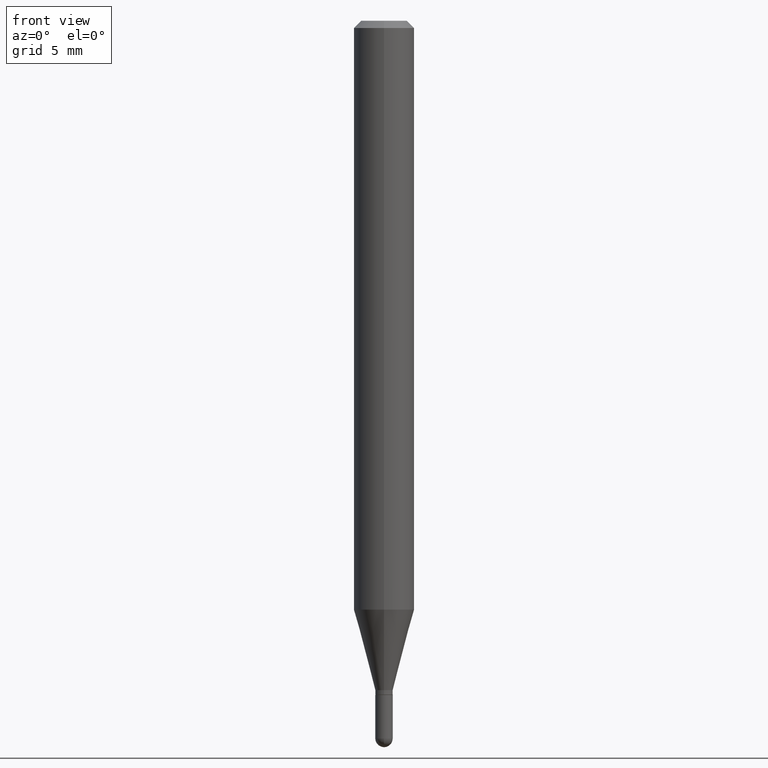
[diagram: clean part render]
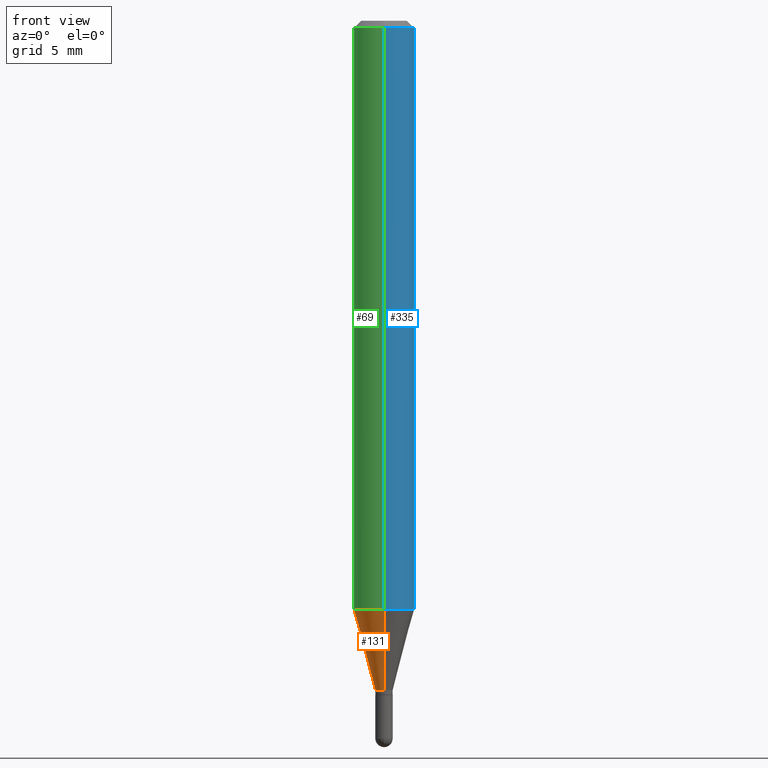
[diagram: same view with three faces highlighted in distinct colors, each labeled with its STEP entity id]
A machine part, front view with three faces highlighted in distinct colors.
Their STEP definitions:

[orange] entity #131 — the highlighted conical surface has half-angle 15 deg.
#9 = DIRECTION ( 'NONE',  ( -2.445452881351750103E-29, 3.491504144110940427E-15, 1.000000000000000000 ) ) ;
#22 = AXIS2_PLACEMENT_3D ( 'NONE', #480, #126, #511 ) ;
#67 = CARTESIAN_POINT ( 'NONE',  ( 1.278976924368512546E-16, 0.01799999999999509631, -1.382000000000000117 ) ) ;
#73 = LINE ( 'NONE', #67, #485 ) ;
#95 = EDGE_CURVE ( 'NONE', #166, #256, #73, .T. ) ;
#100 = LINE ( 'NONE', #257, #434 ) ;
#123 = CARTESIAN_POINT ( 'NONE',  ( 4.440892098500920998E-16, 0.06249999999999573952, -1.215923739063185627 ) ) ;
#126 = DIRECTION ( 'NONE',  ( -2.445452881351750103E-29, 3.491504144110940427E-15, 1.000000000000000000 ) ) ;
#131 = ADVANCED_FACE ( 'NONE', ( #270 ), #374, .T. ) ;
#139 = ORIENTED_EDGE ( 'NONE', *, *, #207, .T. ) ;
#166 = VERTEX_POINT ( 'NONE', #192 ) ;
#169 = CARTESIAN_POINT ( 'NONE',  ( -1.256933281983184281E-16, -0.01800000000000474831, -1.382000000000000117 ) ) ;
#186 = AXIS2_PLACEMENT_3D ( 'NONE', #259, #9, #402 ) ;
#192 = CARTESIAN_POINT ( 'NONE',  ( 2.859934511434718867E-16, 0.01799999999999509631, -1.382000000000000117 ) ) ;
#203 = EDGE_LOOP ( 'NONE', ( #222, #139, #357, #266 ) ) ;
#207 = EDGE_CURVE ( 'NONE', #166, #317, #399, .T. ) ;
#222 = ORIENTED_EDGE ( 'NONE', *, *, #95, .F. ) ;
#227 = DIRECTION ( 'NONE',  ( -1.807323732225330139E-15, -0.2588190451025181860, 0.9659258262890689783 ) ) ;
#241 = CARTESIAN_POINT ( 'NONE',  ( 3.379615882028119036E-29, -4.825258727161319601E-15, -1.382000000000000117 ) ) ;
#256 = VERTEX_POINT ( 'NONE', #123 ) ;
#257 = CARTESIAN_POINT ( 'NONE',  ( -1.256933281983184281E-16, -0.01800000000000474831, -1.382000000000000117 ) ) ;
#259 = CARTESIAN_POINT ( 'NONE',  ( 2.973484211196059892E-29, -4.245402773861981579E-15, -1.215923739063185405 ) ) ;
#266 = ORIENTED_EDGE ( 'NONE', *, *, #362, .F. ) ;
#270 = FACE_OUTER_BOUND ( 'NONE', #203, .T. ) ;
#276 = AXIS2_PLACEMENT_3D ( 'NONE', #241, #495, #458 ) ;
#317 = VERTEX_POINT ( 'NONE', #169 ) ;
#357 = ORIENTED_EDGE ( 'NONE', *, *, #484, .T. ) ;
#362 = EDGE_CURVE ( 'NONE', #256, #442, #497, .T. ) ;
#363 = CARTESIAN_POINT ( 'NONE',  ( -4.364351673553620378E-16, -0.06250000000000426048, -1.215923739063185183 ) ) ;
#374 = CONICAL_SURFACE ( 'NONE', #276, 0.01799999999999992231, 0.2617993877991502960 ) ;
#399 = CIRCLE ( 'NONE', #22, 0.01799999999999992231 ) ;
#402 = DIRECTION ( 'NONE',  ( -6.982962677686265922E-15, -1.000000000000000000, 4.370956789862821150E-15 ) ) ;
#434 = VECTOR ( 'NONE', #227, 39.37007874015748143 ) ;
#442 = VERTEX_POINT ( 'NONE', #363 ) ;
#458 = DIRECTION ( 'NONE',  ( -6.982962677686265133E-15, -1.000000000000000000, 0.000000000000000000 ) ) ;
#480 = CARTESIAN_POINT ( 'NONE',  ( 3.379615882028119036E-29, -4.825258727161319601E-15, -1.382000000000000117 ) ) ;
#484 = EDGE_CURVE ( 'NONE', #317, #442, #100, .T. ) ;
#485 = VECTOR ( 'NONE', #501, 39.37007874015748143 ) ;
#495 = DIRECTION ( 'NONE',  ( -2.445452881351750103E-29, 3.491504144110940427E-15, 1.000000000000000000 ) ) ;
#497 = CIRCLE ( 'NONE', #186, 0.06250000000000000000 ) ;
#501 = DIRECTION ( 'NONE',  ( 1.839019923739600315E-15, 0.2588190451025249583, 0.9659258262890670910 ) ) ;
#511 = DIRECTION ( 'NONE',  ( -6.982962677686265133E-15, -1.000000000000000000, 0.000000000000000000 ) ) ;

[blue] entity #335 — the highlighted cylindrical surface (edge-blend (fillet) strip) has radius 1.5875 mm, axis along (-0, 0, 1).
#7 = FACE_OUTER_BOUND ( 'NONE', #401, .T. ) ;
#21 = DIRECTION ( 'NONE',  ( -6.982962677686265922E-15, -1.000000000000000000, 3.483106191921935554E-15 ) ) ;
#25 = VECTOR ( 'NONE', #337, 39.37007874015748143 ) ;
#27 = EDGE_CURVE ( 'NONE', #442, #256, #80, .T. ) ;
#50 = ORIENTED_EDGE ( 'NONE', *, *, #410, .F. ) ;
#80 = CIRCLE ( 'NONE', #378, 0.06250000000000000000 ) ;
#84 = ORIENTED_EDGE ( 'NONE', *, *, #104, .F. ) ;
#103 = DIRECTION ( 'NONE',  ( -6.982962677686265922E-15, -1.000000000000000000, 4.370956789862821150E-15 ) ) ;
#104 = EDGE_CURVE ( 'NONE', #312, #488, #149, .T. ) ;
#123 = CARTESIAN_POINT ( 'NONE',  ( 4.440892098500920998E-16, 0.06249999999999573952, -1.215923739063185627 ) ) ;
#129 = DIRECTION ( 'NONE',  ( -2.445452881351750103E-29, 3.491504144110940427E-15, 1.000000000000000000 ) ) ;
#137 = CARTESIAN_POINT ( 'NONE',  ( 0.000000000000000000, 0.000000000000000000, 0.000000000000000000 ) ) ;
#149 = CIRCLE ( 'NONE', #171, 0.06250000000000000000 ) ;
#158 = DIRECTION ( 'NONE',  ( -2.445452881351750103E-29, 3.491504144110940427E-15, 1.000000000000000000 ) ) ;
#171 = AXIS2_PLACEMENT_3D ( 'NONE', #302, #386, #21 ) ;
#175 = CARTESIAN_POINT ( 'NONE',  ( -4.364351673553916201E-16, -0.06250000000000000000, 2.182190090069337767E-16 ) ) ;
#181 = CARTESIAN_POINT ( 'NONE',  ( 4.440892098500924943E-16, 0.06249999999999993755, -0.01499999999999997863 ) ) ;
#185 = CARTESIAN_POINT ( 'NONE',  ( 4.440892098500625669E-16, 0.06250000000000000000, -2.182190090069337767E-16 ) ) ;
#223 = CYLINDRICAL_SURFACE ( 'NONE', #292, 0.06250000000000000000 ) ;
#244 = CARTESIAN_POINT ( 'NONE',  ( 2.973484211196059892E-29, -4.245402773861981579E-15, -1.215923739063185405 ) ) ;
#256 = VERTEX_POINT ( 'NONE', #123 ) ;
#292 = AXIS2_PLACEMENT_3D ( 'NONE', #137, #364, #453 ) ;
#302 = CARTESIAN_POINT ( 'NONE',  ( 3.668179322027566335E-31, -5.237256216166327268E-17, -0.01499999999999976179 ) ) ;
#312 = VERTEX_POINT ( 'NONE', #355 ) ;
#325 = ORIENTED_EDGE ( 'NONE', *, *, #502, .T. ) ;
#334 = ORIENTED_EDGE ( 'NONE', *, *, #27, .T. ) ;
#335 = ADVANCED_FACE ( 'NONE', ( #7 ), #223, .T. ) ;
#337 = DIRECTION ( 'NONE',  ( -2.445452881351750103E-29, 3.491504144110940427E-15, 1.000000000000000000 ) ) ;
#355 = CARTESIAN_POINT ( 'NONE',  ( -4.364351673553912750E-16, -0.06250000000000005551, -0.01499999999999954321 ) ) ;
#363 = CARTESIAN_POINT ( 'NONE',  ( -4.364351673553620378E-16, -0.06250000000000426048, -1.215923739063185183 ) ) ;
#364 = DIRECTION ( 'NONE',  ( -2.445452881351750103E-29, 3.491504144110940427E-15, 1.000000000000000000 ) ) ;
#373 = LINE ( 'NONE', #185, #417 ) ;
#378 = AXIS2_PLACEMENT_3D ( 'NONE', #244, #158, #103 ) ;
#386 = DIRECTION ( 'NONE',  ( -2.445452881351750103E-29, 3.491504144110940427E-15, 1.000000000000000000 ) ) ;
#401 = EDGE_LOOP ( 'NONE', ( #334, #325, #84, #50 ) ) ;
#409 = LINE ( 'NONE', #175, #25 ) ;
#410 = EDGE_CURVE ( 'NONE', #442, #312, #409, .T. ) ;
#417 = VECTOR ( 'NONE', #129, 39.37007874015748143 ) ;
#442 = VERTEX_POINT ( 'NONE', #363 ) ;
#453 = DIRECTION ( 'NONE',  ( -6.982962677686265922E-15, -1.000000000000000000, 3.491504144110940427E-15 ) ) ;
#488 = VERTEX_POINT ( 'NONE', #181 ) ;
#502 = EDGE_CURVE ( 'NONE', #256, #488, #373, .T. ) ;

[green] entity #69 — the highlighted cylindrical surface (edge-blend (fillet) strip) has radius 1.5875 mm, axis along (-0, 0, 1).
#9 = DIRECTION ( 'NONE',  ( -2.445452881351750103E-29, 3.491504144110940427E-15, 1.000000000000000000 ) ) ;
#25 = VECTOR ( 'NONE', #337, 39.37007874015748143 ) ;
#69 = ADVANCED_FACE ( 'NONE', ( #461 ), #428, .T. ) ;
#123 = CARTESIAN_POINT ( 'NONE',  ( 4.440892098500920998E-16, 0.06249999999999573952, -1.215923739063185627 ) ) ;
#129 = DIRECTION ( 'NONE',  ( -2.445452881351750103E-29, 3.491504144110940427E-15, 1.000000000000000000 ) ) ;
#162 = ORIENTED_EDGE ( 'NONE', *, *, #502, .F. ) ;
#175 = CARTESIAN_POINT ( 'NONE',  ( -4.364351673553916201E-16, -0.06250000000000000000, 2.182190090069337767E-16 ) ) ;
#177 = DIRECTION ( 'NONE',  ( -6.982962677686265922E-15, -1.000000000000000000, 3.483106191921935554E-15 ) ) ;
#181 = CARTESIAN_POINT ( 'NONE',  ( 4.440892098500924943E-16, 0.06249999999999993755, -0.01499999999999997863 ) ) ;
#185 = CARTESIAN_POINT ( 'NONE',  ( 4.440892098500625669E-16, 0.06250000000000000000, -2.182190090069337767E-16 ) ) ;
#186 = AXIS2_PLACEMENT_3D ( 'NONE', #259, #9, #402 ) ;
#226 = DIRECTION ( 'NONE',  ( -2.445452881351750103E-29, 3.491504144110940427E-15, 1.000000000000000000 ) ) ;
#235 = CARTESIAN_POINT ( 'NONE',  ( 0.000000000000000000, 0.000000000000000000, 0.000000000000000000 ) ) ;
#256 = VERTEX_POINT ( 'NONE', #123 ) ;
#259 = CARTESIAN_POINT ( 'NONE',  ( 2.973484211196059892E-29, -4.245402773861981579E-15, -1.215923739063185405 ) ) ;
#284 = AXIS2_PLACEMENT_3D ( 'NONE', #448, #226, #177 ) ;
#296 = ORIENTED_EDGE ( 'NONE', *, *, #362, .T. ) ;
#312 = VERTEX_POINT ( 'NONE', #355 ) ;
#320 = EDGE_LOOP ( 'NONE', ( #162, #296, #471, #368 ) ) ;
#322 = CIRCLE ( 'NONE', #284, 0.06250000000000000000 ) ;
#337 = DIRECTION ( 'NONE',  ( -2.445452881351750103E-29, 3.491504144110940427E-15, 1.000000000000000000 ) ) ;
#355 = CARTESIAN_POINT ( 'NONE',  ( -4.364351673553912750E-16, -0.06250000000000005551, -0.01499999999999954321 ) ) ;
#362 = EDGE_CURVE ( 'NONE', #256, #442, #497, .T. ) ;
#363 = CARTESIAN_POINT ( 'NONE',  ( -4.364351673553620378E-16, -0.06250000000000426048, -1.215923739063185183 ) ) ;
#368 = ORIENTED_EDGE ( 'NONE', *, *, #429, .F. ) ;
#373 = LINE ( 'NONE', #185, #417 ) ;
#383 = DIRECTION ( 'NONE',  ( -2.445452881351750103E-29, 3.491504144110940427E-15, 1.000000000000000000 ) ) ;
#389 = DIRECTION ( 'NONE',  ( -6.982962677686265922E-15, -1.000000000000000000, 3.491504144110940427E-15 ) ) ;
#402 = DIRECTION ( 'NONE',  ( -6.982962677686265922E-15, -1.000000000000000000, 4.370956789862821150E-15 ) ) ;
#409 = LINE ( 'NONE', #175, #25 ) ;
#410 = EDGE_CURVE ( 'NONE', #442, #312, #409, .T. ) ;
#415 = AXIS2_PLACEMENT_3D ( 'NONE', #235, #383, #389 ) ;
#417 = VECTOR ( 'NONE', #129, 39.37007874015748143 ) ;
#428 = CYLINDRICAL_SURFACE ( 'NONE', #415, 0.06250000000000000000 ) ;
#429 = EDGE_CURVE ( 'NONE', #488, #312, #322, .T. ) ;
#442 = VERTEX_POINT ( 'NONE', #363 ) ;
#448 = CARTESIAN_POINT ( 'NONE',  ( 3.668179322027566335E-31, -5.237256216166327268E-17, -0.01499999999999976179 ) ) ;
#461 = FACE_OUTER_BOUND ( 'NONE', #320, .T. ) ;
#471 = ORIENTED_EDGE ( 'NONE', *, *, #410, .T. ) ;
#488 = VERTEX_POINT ( 'NONE', #181 ) ;
#497 = CIRCLE ( 'NONE', #186, 0.06250000000000000000 ) ;
#502 = EDGE_CURVE ( 'NONE', #256, #488, #373, .T. ) ;